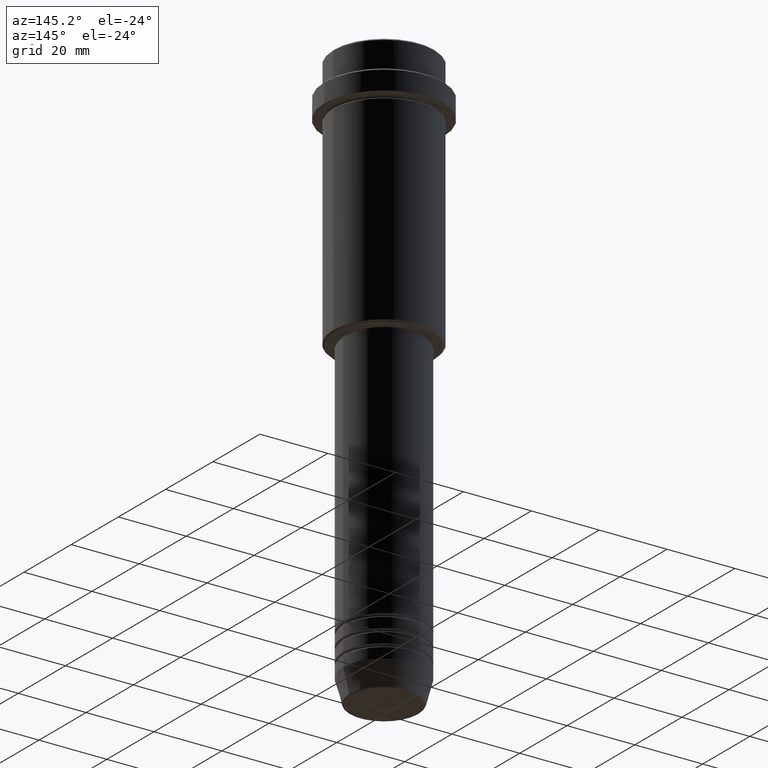
[diagram: clean part render]
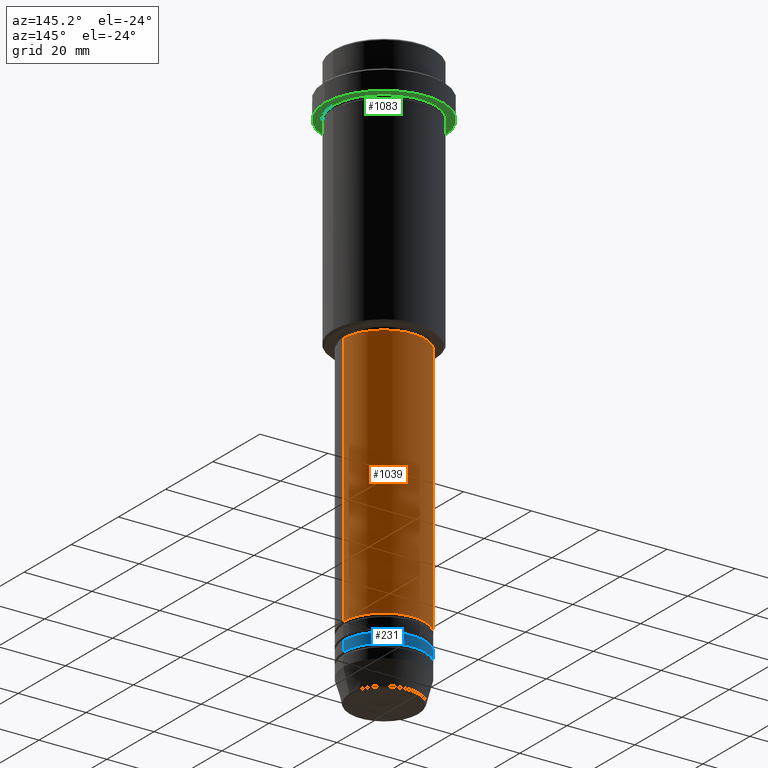
[diagram: same view with three faces highlighted in distinct colors, each labeled with its STEP entity id]
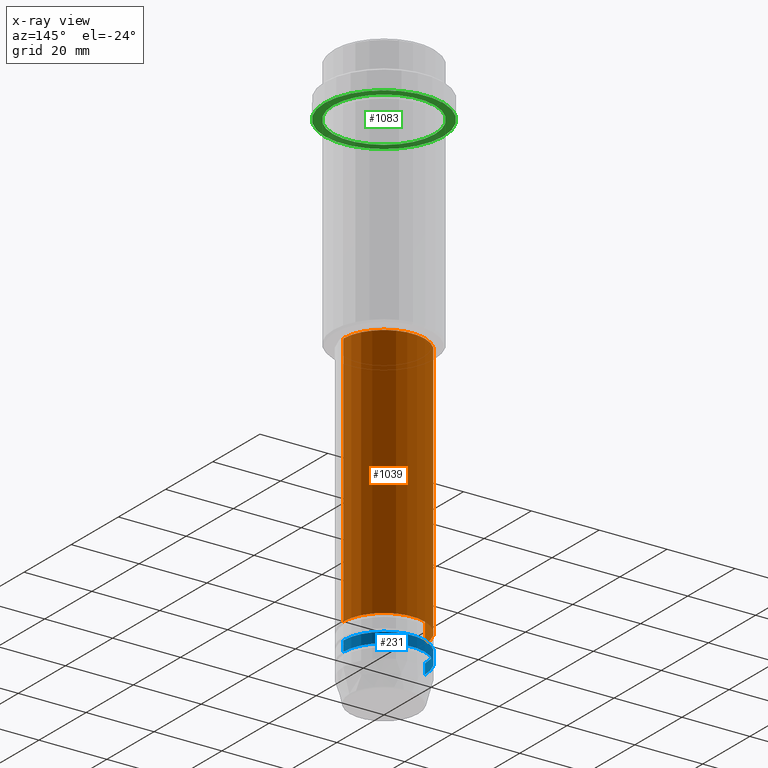
[diagram: x-ray of the same camera — body ghosted, the three highlighted faces saturated]
A machine part, auxiliary view with three faces highlighted in distinct colors.
The next image is the same camera in x-ray (body ghosted, the three faces saturated) — at least one of them is partly hidden behind the body in this view.
Their STEP definitions:

[orange] entity #1039 — the highlighted cylindrical surface (partial cylindrical patch) has radius 12 mm, axis along (-0, -0, 1).
#4 = CARTESIAN_POINT ( 'NONE',  ( 0.000000000000000000, 0.000000000000000000, -76.00000000000001421 ) ) ;
#21 = ORIENTED_EDGE ( 'NONE', *, *, #1099, .F. ) ;
#76 = EDGE_CURVE ( 'NONE', #163, #466, #1384, .T. ) ;
#80 = ORIENTED_EDGE ( 'NONE', *, *, #568, .T. ) ;
#100 = ORIENTED_EDGE ( 'NONE', *, *, #76, .T. ) ;
#116 = DIRECTION ( 'NONE',  ( -0.000000000000000000, -0.000000000000000000, 1.000000000000000000 ) ) ;
#127 = DIRECTION ( 'NONE',  ( 1.000000000000000000, 0.000000000000000000, 0.000000000000000000 ) ) ;
#161 = VECTOR ( 'NONE', #416, 1000.000000000000000 ) ;
#163 = VERTEX_POINT ( 'NONE', #443 ) ;
#169 = CIRCLE ( 'NONE', #463, 11.99999999999999822 ) ;
#171 = CARTESIAN_POINT ( 'NONE',  ( 11.99999999999999822, 0.000000000000000000, -76.00000000000001421 ) ) ;
#205 = LINE ( 'NONE', #412, #848 ) ;
#239 = CARTESIAN_POINT ( 'NONE',  ( 0.000000000000000000, 0.000000000000000000, -150.9999999999999147 ) ) ;
#243 = DIRECTION ( 'NONE',  ( -0.000000000000000000, -0.000000000000000000, 1.000000000000000000 ) ) ;
#258 = CIRCLE ( 'NONE', #1275, 12.00000000000000000 ) ;
#315 = VERTEX_POINT ( 'NONE', #1352 ) ;
#359 = EDGE_LOOP ( 'NONE', ( #80, #100, #21, #1014 ) ) ;
#360 = CARTESIAN_POINT ( 'NONE',  ( 0.000000000000000000, 0.000000000000000000, 0.000000000000000000 ) ) ;
#412 = CARTESIAN_POINT ( 'NONE',  ( 12.00000000000000000, 0.000000000000000000, 0.000000000000000000 ) ) ;
#416 = DIRECTION ( 'NONE',  ( -0.000000000000000000, -0.000000000000000000, 1.000000000000000000 ) ) ;
#427 = CARTESIAN_POINT ( 'NONE',  ( -12.00000000000000000, 1.469576158976823947E-15, 0.000000000000000000 ) ) ;
#443 = CARTESIAN_POINT ( 'NONE',  ( -12.00000000000000000, 1.469576158976823947E-15, -150.9999999999999147 ) ) ;
#463 = AXIS2_PLACEMENT_3D ( 'NONE', #4, #1306, #127 ) ;
#466 = VERTEX_POINT ( 'NONE', #1051 ) ;
#568 = EDGE_CURVE ( 'NONE', #315, #163, #258, .T. ) ;
#848 = VECTOR ( 'NONE', #1069, 1000.000000000000000 ) ;
#868 = DIRECTION ( 'NONE',  ( 1.000000000000000000, 0.000000000000000000, 0.000000000000000000 ) ) ;
#939 = EDGE_CURVE ( 'NONE', #315, #1146, #205, .T. ) ;
#991 = FACE_OUTER_BOUND ( 'NONE', #359, .T. ) ;
#1014 = ORIENTED_EDGE ( 'NONE', *, *, #939, .F. ) ;
#1039 = ADVANCED_FACE ( 'NONE', ( #991 ), #1213, .T. ) ;
#1051 = CARTESIAN_POINT ( 'NONE',  ( -11.99999999999999822, 1.469576158976823750E-15, -76.00000000000001421 ) ) ;
#1069 = DIRECTION ( 'NONE',  ( -0.000000000000000000, -0.000000000000000000, 1.000000000000000000 ) ) ;
#1099 = EDGE_CURVE ( 'NONE', #1146, #466, #169, .T. ) ;
#1139 = AXIS2_PLACEMENT_3D ( 'NONE', #360, #243, #1205 ) ;
#1146 = VERTEX_POINT ( 'NONE', #171 ) ;
#1205 = DIRECTION ( 'NONE',  ( 1.000000000000000000, 0.000000000000000000, 0.000000000000000000 ) ) ;
#1213 = CYLINDRICAL_SURFACE ( 'NONE', #1139, 12.00000000000000000 ) ;
#1275 = AXIS2_PLACEMENT_3D ( 'NONE', #239, #116, #868 ) ;
#1306 = DIRECTION ( 'NONE',  ( -0.000000000000000000, -0.000000000000000000, 1.000000000000000000 ) ) ;
#1352 = CARTESIAN_POINT ( 'NONE',  ( 12.00000000000000000, 0.000000000000000000, -150.9999999999999147 ) ) ;
#1384 = LINE ( 'NONE', #427, #161 ) ;

[blue] entity #231 — the highlighted cylindrical surface (partial cylindrical patch) has radius 12 mm, axis along (-0, -0, 1).
#11 = ORIENTED_EDGE ( 'NONE', *, *, #59, .T. ) ;
#17 = DIRECTION ( 'NONE',  ( -0.000000000000000000, -0.000000000000000000, 1.000000000000000000 ) ) ;
#59 = EDGE_CURVE ( 'NONE', #1115, #507, #627, .T. ) ;
#120 = ORIENTED_EDGE ( 'NONE', *, *, #732, .F. ) ;
#191 = CARTESIAN_POINT ( 'NONE',  ( 12.00000000000000000, 0.000000000000000000, -158.9999999999999147 ) ) ;
#229 = EDGE_LOOP ( 'NONE', ( #1235, #11, #120, #1084 ) ) ;
#231 = ADVANCED_FACE ( 'NONE', ( #566 ), #1096, .T. ) ;
#252 = CARTESIAN_POINT ( 'NONE',  ( 0.000000000000000000, 0.000000000000000000, 0.000000000000000000 ) ) ;
#260 = CIRCLE ( 'NONE', #733, 12.00000000000000000 ) ;
#285 = CIRCLE ( 'NONE', #572, 12.00000000000000000 ) ;
#328 = AXIS2_PLACEMENT_3D ( 'NONE', #252, #17, #1012 ) ;
#382 = CARTESIAN_POINT ( 'NONE',  ( 12.00000000000000000, 0.000000000000000000, -155.9999999999999147 ) ) ;
#507 = VERTEX_POINT ( 'NONE', #1397 ) ;
#519 = CARTESIAN_POINT ( 'NONE',  ( -12.00000000000000000, 1.469576158976823947E-15, 0.000000000000000000 ) ) ;
#566 = FACE_OUTER_BOUND ( 'NONE', #229, .T. ) ;
#572 = AXIS2_PLACEMENT_3D ( 'NONE', #1022, #1042, #586 ) ;
#586 = DIRECTION ( 'NONE',  ( 1.000000000000000000, 0.000000000000000000, 0.000000000000000000 ) ) ;
#627 = LINE ( 'NONE', #519, #1359 ) ;
#693 = LINE ( 'NONE', #1351, #756 ) ;
#702 = DIRECTION ( 'NONE',  ( -0.000000000000000000, -0.000000000000000000, 1.000000000000000000 ) ) ;
#717 = VERTEX_POINT ( 'NONE', #382 ) ;
#732 = EDGE_CURVE ( 'NONE', #717, #507, #285, .T. ) ;
#733 = AXIS2_PLACEMENT_3D ( 'NONE', #1142, #702, #1132 ) ;
#753 = EDGE_CURVE ( 'NONE', #945, #717, #693, .T. ) ;
#756 = VECTOR ( 'NONE', #1120, 1000.000000000000000 ) ;
#842 = EDGE_CURVE ( 'NONE', #945, #1115, #260, .T. ) ;
#945 = VERTEX_POINT ( 'NONE', #191 ) ;
#1009 = CARTESIAN_POINT ( 'NONE',  ( -12.00000000000000000, 1.469576158976823947E-15, -158.9999999999999147 ) ) ;
#1012 = DIRECTION ( 'NONE',  ( 1.000000000000000000, 0.000000000000000000, 0.000000000000000000 ) ) ;
#1022 = CARTESIAN_POINT ( 'NONE',  ( 0.000000000000000000, 0.000000000000000000, -155.9999999999999147 ) ) ;
#1042 = DIRECTION ( 'NONE',  ( -0.000000000000000000, -0.000000000000000000, 1.000000000000000000 ) ) ;
#1084 = ORIENTED_EDGE ( 'NONE', *, *, #753, .F. ) ;
#1096 = CYLINDRICAL_SURFACE ( 'NONE', #328, 12.00000000000000000 ) ;
#1115 = VERTEX_POINT ( 'NONE', #1009 ) ;
#1120 = DIRECTION ( 'NONE',  ( -0.000000000000000000, -0.000000000000000000, 1.000000000000000000 ) ) ;
#1132 = DIRECTION ( 'NONE',  ( 1.000000000000000000, 0.000000000000000000, 0.000000000000000000 ) ) ;
#1142 = CARTESIAN_POINT ( 'NONE',  ( 0.000000000000000000, 0.000000000000000000, -158.9999999999999147 ) ) ;
#1235 = ORIENTED_EDGE ( 'NONE', *, *, #842, .T. ) ;
#1286 = DIRECTION ( 'NONE',  ( -0.000000000000000000, -0.000000000000000000, 1.000000000000000000 ) ) ;
#1351 = CARTESIAN_POINT ( 'NONE',  ( 12.00000000000000000, 0.000000000000000000, 0.000000000000000000 ) ) ;
#1359 = VECTOR ( 'NONE', #1286, 1000.000000000000000 ) ;
#1397 = CARTESIAN_POINT ( 'NONE',  ( -12.00000000000000000, 1.469576158976823947E-15, -155.9999999999999147 ) ) ;

[green] entity #1083 — the highlighted planar face has unit normal (0, 0, -1).
#44 = AXIS2_PLACEMENT_3D ( 'NONE', #493, #924, #791 ) ;
#54 = EDGE_LOOP ( 'NONE', ( #1040, #1156 ) ) ;
#106 = PLANE ( 'NONE',  #1391 ) ;
#121 = DIRECTION ( 'NONE',  ( -1.000000000000000000, 0.000000000000000000, -0.000000000000000000 ) ) ;
#183 = DIRECTION ( 'NONE',  ( -1.000000000000000000, 0.000000000000000000, 0.000000000000000000 ) ) ;
#222 = DIRECTION ( 'NONE',  ( 0.000000000000000000, 0.000000000000000000, -1.000000000000000000 ) ) ;
#236 = CARTESIAN_POINT ( 'NONE',  ( 0.000000000000000000, 17.50000000000000000, -15.00000000000000000 ) ) ;
#282 = CARTESIAN_POINT ( 'NONE',  ( -14.99999999999999467, 0.000000000000000000, -15.00000000000000000 ) ) ;
#352 = FACE_OUTER_BOUND ( 'NONE', #54, .T. ) ;
#358 = VERTEX_POINT ( 'NONE', #1338 ) ;
#429 = DIRECTION ( 'NONE',  ( -0.000000000000000000, -0.000000000000000000, 1.000000000000000000 ) ) ;
#448 = EDGE_CURVE ( 'NONE', #820, #765, #1362, .T. ) ;
#470 = CARTESIAN_POINT ( 'NONE',  ( 14.99999999999999467, 1.836970198721029194E-15, -15.00000000000000000 ) ) ;
#473 = DIRECTION ( 'NONE',  ( -1.000000000000000000, 0.000000000000000000, 0.000000000000000000 ) ) ;
#493 = CARTESIAN_POINT ( 'NONE',  ( 0.000000000000000000, 0.000000000000000000, -15.00000000000000000 ) ) ;
#508 = CIRCLE ( 'NONE', #529, 17.50000000000000000 ) ;
#529 = AXIS2_PLACEMENT_3D ( 'NONE', #1401, #429, #865 ) ;
#537 = CARTESIAN_POINT ( 'NONE',  ( 0.000000000000000000, 0.000000000000000000, -15.00000000000000000 ) ) ;
#584 = CARTESIAN_POINT ( 'NONE',  ( 0.000000000000000000, 0.000000000000000000, -15.00000000000000000 ) ) ;
#659 = AXIS2_PLACEMENT_3D ( 'NONE', #537, #1072, #183 ) ;
#765 = VERTEX_POINT ( 'NONE', #470 ) ;
#779 = AXIS2_PLACEMENT_3D ( 'NONE', #584, #1348, #473 ) ;
#791 = DIRECTION ( 'NONE',  ( 1.000000000000000000, 0.000000000000000000, 0.000000000000000000 ) ) ;
#820 = VERTEX_POINT ( 'NONE', #282 ) ;
#865 = DIRECTION ( 'NONE',  ( 1.000000000000000000, 0.000000000000000000, 0.000000000000000000 ) ) ;
#924 = DIRECTION ( 'NONE',  ( -0.000000000000000000, -0.000000000000000000, 1.000000000000000000 ) ) ;
#997 = VERTEX_POINT ( 'NONE', #1094 ) ;
#1008 = CIRCLE ( 'NONE', #44, 17.50000000000000000 ) ;
#1031 = CIRCLE ( 'NONE', #779, 14.99999999999999467 ) ;
#1040 = ORIENTED_EDGE ( 'NONE', *, *, #1065, .F. ) ;
#1065 = EDGE_CURVE ( 'NONE', #997, #358, #508, .T. ) ;
#1072 = DIRECTION ( 'NONE',  ( -0.000000000000000000, -0.000000000000000000, 1.000000000000000000 ) ) ;
#1083 = ADVANCED_FACE ( 'NONE', ( #1295, #352 ), #106, .T. ) ;
#1094 = CARTESIAN_POINT ( 'NONE',  ( 17.50000000000000000, 0.000000000000000000, -15.00000000000000000 ) ) ;
#1103 = ORIENTED_EDGE ( 'NONE', *, *, #1214, .T. ) ;
#1130 = EDGE_CURVE ( 'NONE', #358, #997, #1008, .T. ) ;
#1153 = EDGE_LOOP ( 'NONE', ( #1217, #1103 ) ) ;
#1156 = ORIENTED_EDGE ( 'NONE', *, *, #1130, .F. ) ;
#1214 = EDGE_CURVE ( 'NONE', #765, #820, #1031, .T. ) ;
#1217 = ORIENTED_EDGE ( 'NONE', *, *, #448, .T. ) ;
#1295 = FACE_BOUND ( 'NONE', #1153, .T. ) ;
#1338 = CARTESIAN_POINT ( 'NONE',  ( -17.50000000000000000, 2.143131898507868248E-15, -15.00000000000000000 ) ) ;
#1348 = DIRECTION ( 'NONE',  ( -0.000000000000000000, -0.000000000000000000, 1.000000000000000000 ) ) ;
#1362 = CIRCLE ( 'NONE', #659, 14.99999999999999467 ) ;
#1391 = AXIS2_PLACEMENT_3D ( 'NONE', #236, #222, #121 ) ;
#1401 = CARTESIAN_POINT ( 'NONE',  ( 0.000000000000000000, 0.000000000000000000, -15.00000000000000000 ) ) ;